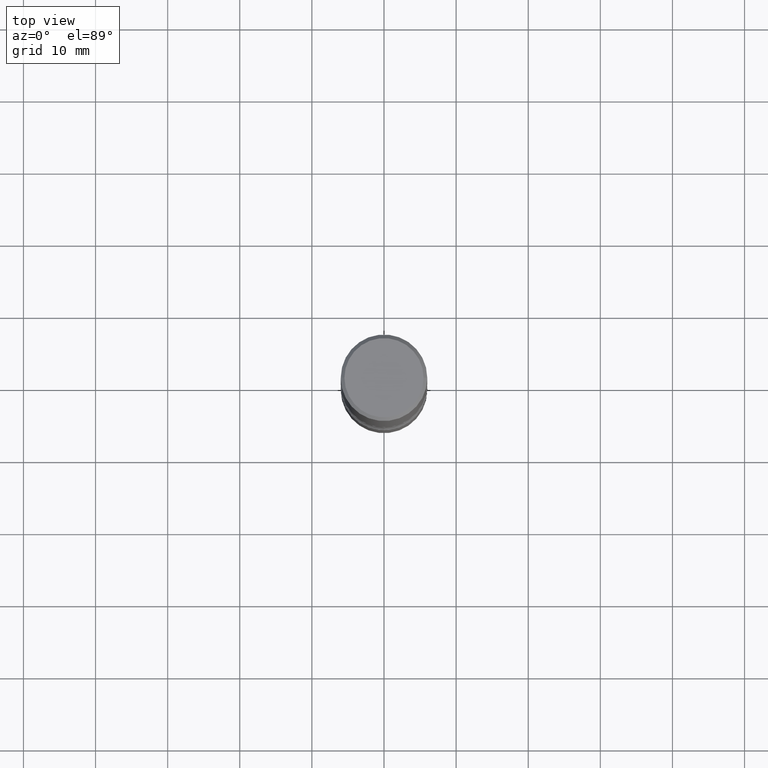
[diagram: clean part render]
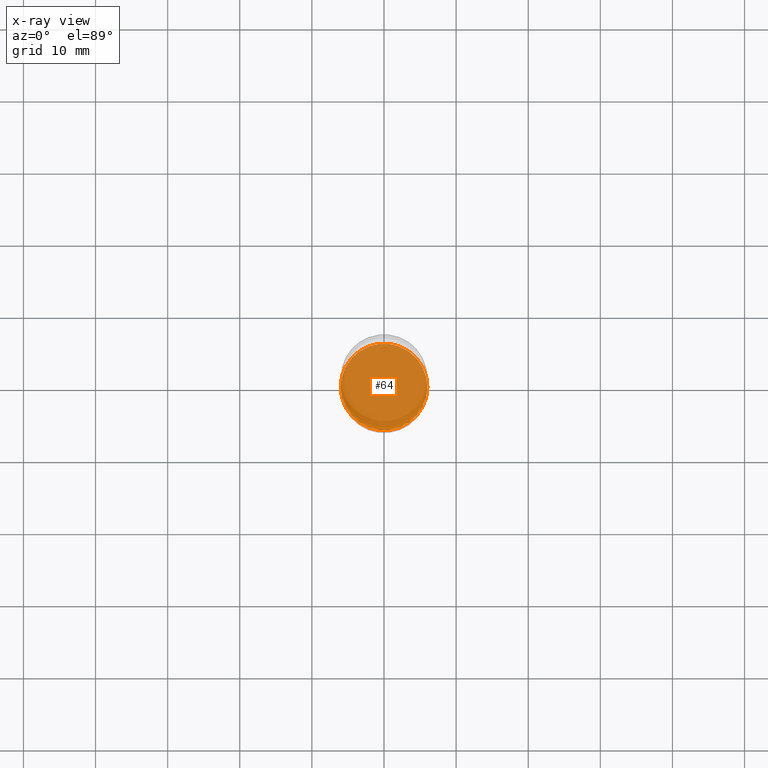
[diagram: x-ray — body ghosted, one internal face saturated and labeled with its STEP entity id]
A machine part, top view, then the same camera in x-ray: the body is ghosted and one INTERNAL B-rep face — a face not visible from any outside direction — is saturated and labeled: STEP entity #64.
In plain terms, the highlighted planar face has unit normal (0, -0, -1).
Its self-contained STEP definition (entity closure, byte-faithful):
#60 = AXIS2_PLACEMENT_3D ( 'NONE', #402, #269, #368 ) ;
#64 = ADVANCED_FACE ( 'NONE', ( #142 ), #532, .F. ) ;
#104 = EDGE_LOOP ( 'NONE', ( #228, #409 ) ) ;
#142 = FACE_OUTER_BOUND ( 'NONE', #104, .T. ) ;
#169 = CARTESIAN_POINT ( 'NONE',  ( -0.2362000000000001321, -1.007454796688149554E-14, -2.913400000000000212 ) ) ;
#190 = VERTEX_POINT ( 'NONE', #217 ) ;
#196 = AXIS2_PLACEMENT_3D ( 'NONE', #510, #473, #294 ) ;
#217 = CARTESIAN_POINT ( 'NONE',  ( 0.2362000000000001321, -1.182145751705511899E-14, -2.913400000000000212 ) ) ;
#228 = ORIENTED_EDGE ( 'NONE', *, *, #512, .T. ) ;
#230 = EDGE_CURVE ( 'NONE', #281, #190, #498, .T. ) ;
#269 = DIRECTION ( 'NONE',  ( 2.438088387897960049E-29, -3.491481338843145188E-15, -1.000000000000000000 ) ) ;
#281 = VERTEX_POINT ( 'NONE', #169 ) ;
#284 = DIRECTION ( 'NONE',  ( -2.445468806185136597E-29, 3.491481338843145583E-15, 1.000000000000000000 ) ) ;
#294 = DIRECTION ( 'NONE',  ( 1.000000000000000000, -6.982962677686269077E-15, 0.000000000000000000 ) ) ;
#297 = CIRCLE ( 'NONE', #196, 0.2362000000000001321 ) ;
#368 = DIRECTION ( 'NONE',  ( -1.000000000000000000, 6.982962677686265922E-15, -4.876176775795935793E-29 ) ) ;
#402 = CARTESIAN_POINT ( 'NONE',  ( 7.124628819939777829E-29, -1.017208173258562247E-14, -2.913400000000000212 ) ) ;
#409 = ORIENTED_EDGE ( 'NONE', *, *, #230, .T. ) ;
#442 = AXIS2_PLACEMENT_3D ( 'NONE', #503, #284, #474 ) ;
#473 = DIRECTION ( 'NONE',  ( -2.445468806185136597E-29, 3.491481338843145583E-15, 1.000000000000000000 ) ) ;
#474 = DIRECTION ( 'NONE',  ( 1.000000000000000000, -6.982962677686269077E-15, 0.000000000000000000 ) ) ;
#498 = CIRCLE ( 'NONE', #442, 0.2362000000000001321 ) ;
#503 = CARTESIAN_POINT ( 'NONE',  ( 7.124628819939777829E-29, -1.017208173258562247E-14, -2.913400000000000212 ) ) ;
#510 = CARTESIAN_POINT ( 'NONE',  ( 7.124628819939777829E-29, -1.017208173258562247E-14, -2.913400000000000212 ) ) ;
#512 = EDGE_CURVE ( 'NONE', #190, #281, #297, .T. ) ;
#532 = PLANE ( 'NONE',  #60 ) ;